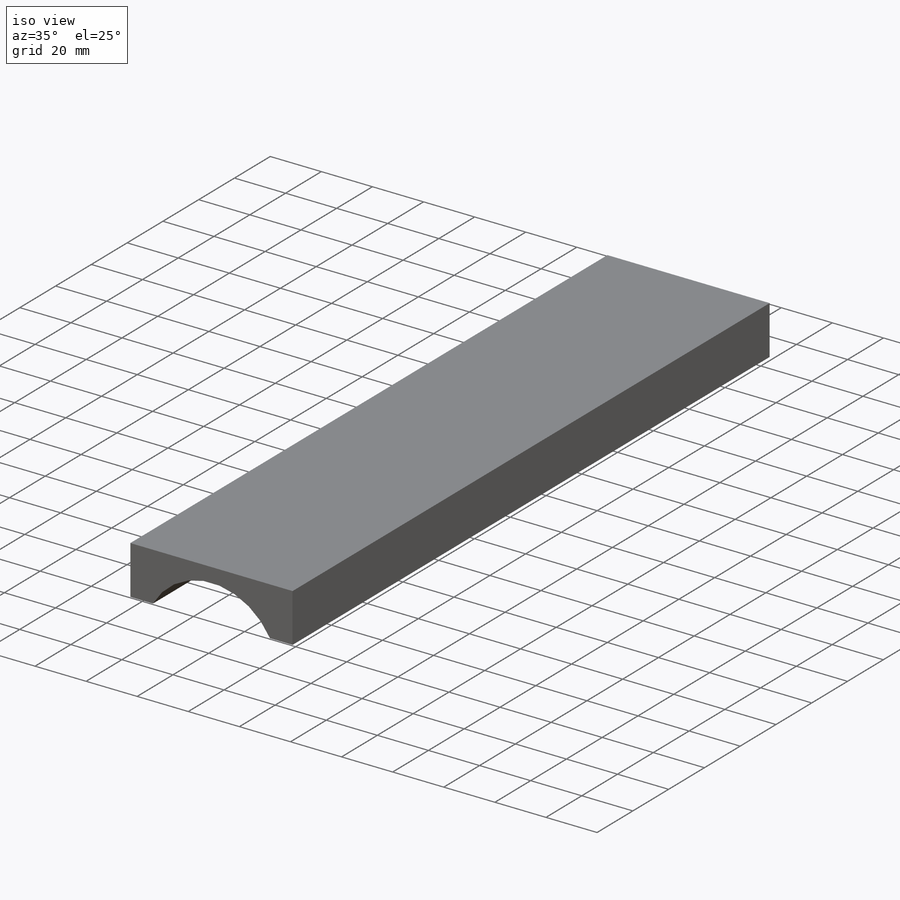
[diagram: iso view]
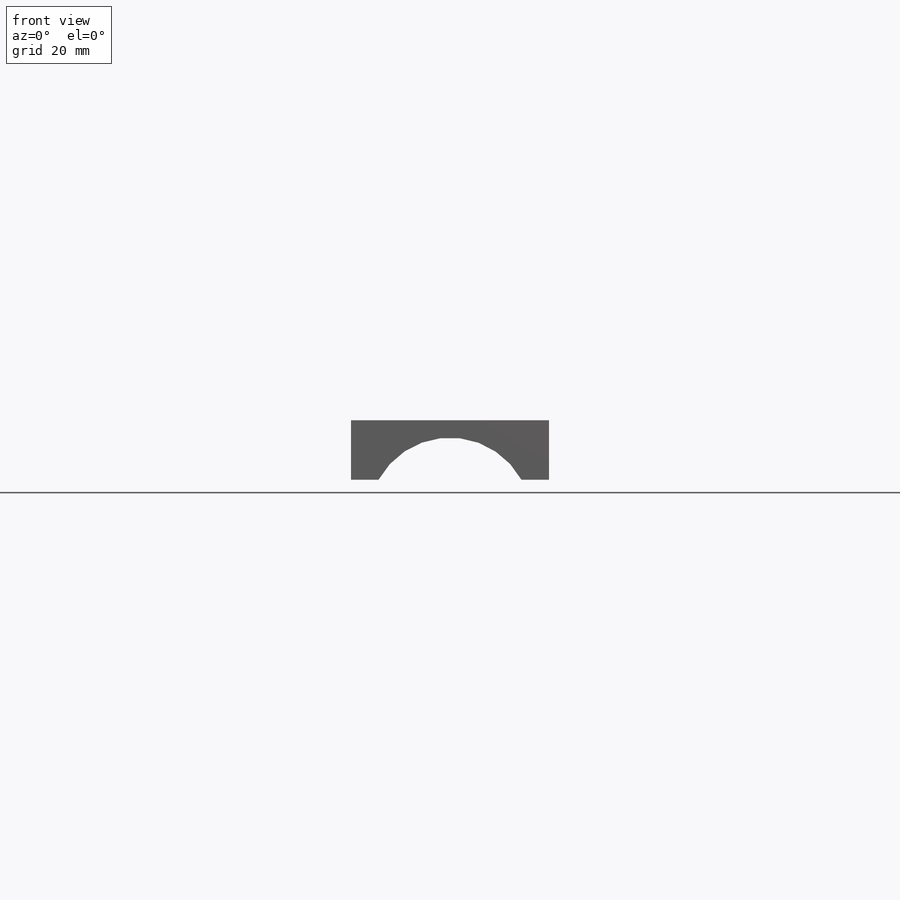
[diagram: front view]
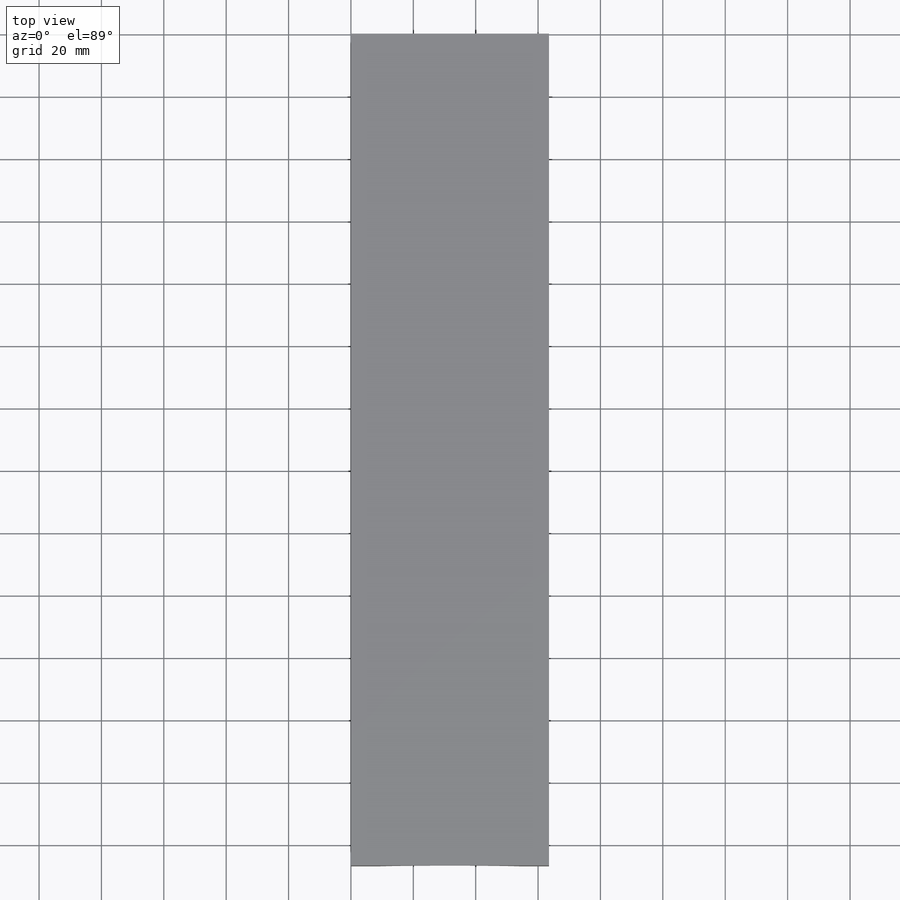
[diagram: top view]
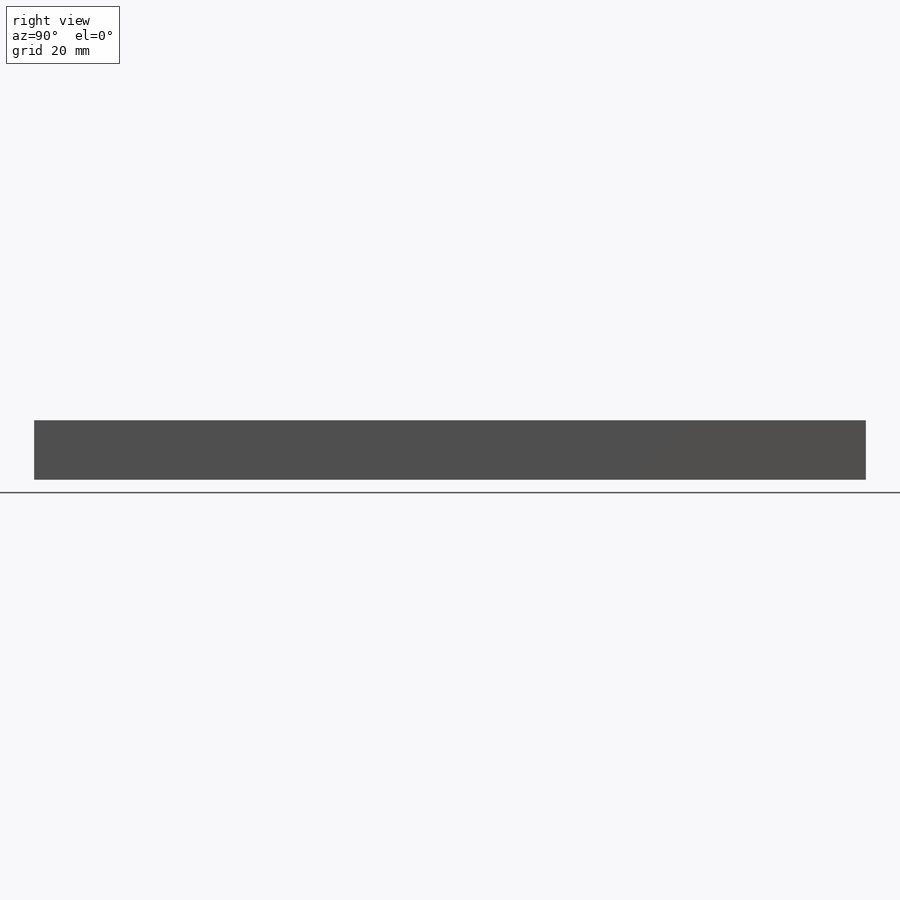
[diagram: right view]
SOLIDWORKS PART (.sldprt)
format: sldprt  version: not decoded by parser v0  size: 208,896 bytes
history: native  units: mm
features: sketch x5, extrude x4, material x1, plane x1, cut_extrude x1 (+13 scaffold rows collapsed)
feature tree (25):
  scaffold x13  (default folders/planes/origin — collapsed)
  material  "Material <not specified>"
  sketch  "Sketch2"  dims[c1.D3=52.3875mm c1.D4=52.3875mm c1.D5=52.3875mm c1.D6=52.3875mm c1.D7=52.3875mm c1.D8=52.3875mm c1.D1=63.5mm c1.D2=63.5mm c2.D4=31.75mm c2.D5=31.75mm c2.D6=31.75mm c2.D7=31.75mm c2.D8=32.4485mm]
  extrude  "Boss-Extrude1"  Depth=279.4mm
  sketch  "Sketch3"  dims[c1.D5=52.3875mm c1.D6=~46.633391mm c1.D1=28.575mm c1.D2=28.575mm c1.D3=12.7mm c1.D4=12.7mm c2.D5=~4.616937mm c2.D1=12.7mm c2.D2=12.7mm c2.D3=12.7mm c2.D4=12.7mm c3.D5=0.0mm c3.D6=0.0mm]
  extrude  "Boss-Extrude2"  Depth=12.7mm
  sketch  "Sketch4"  dims[D1=46.228mm D2=0.0mm]
  extrude  "Boss-Extrude3"  Depth=12.7mm
  plane  "Plane1"  Offset=6.35mm
  sketch  "Sketch5"  dims[D1=38.1mm D2=0.0mm]
  extrude  "Boss-Extrude4"  Depth=6.35mm
  sketch  "Sketch7"  dims[D1=19.05mm]
  cut_extrude  "Cut-Extrude4"  [1 undecoded]
decode coverage: 9 of 10 modeling features carry decoded parameters
note: ~ marks probable driven/reference dimensions
note: 1 parameter value undecoded
note: suppression state not decoded; provenance and decode notes live in map.json
